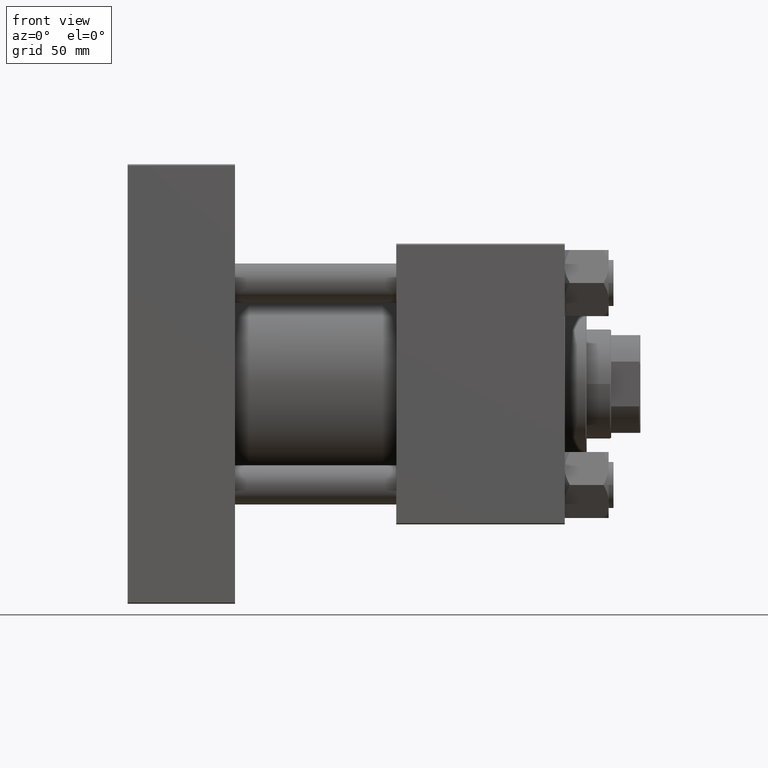
[diagram: clean part render]
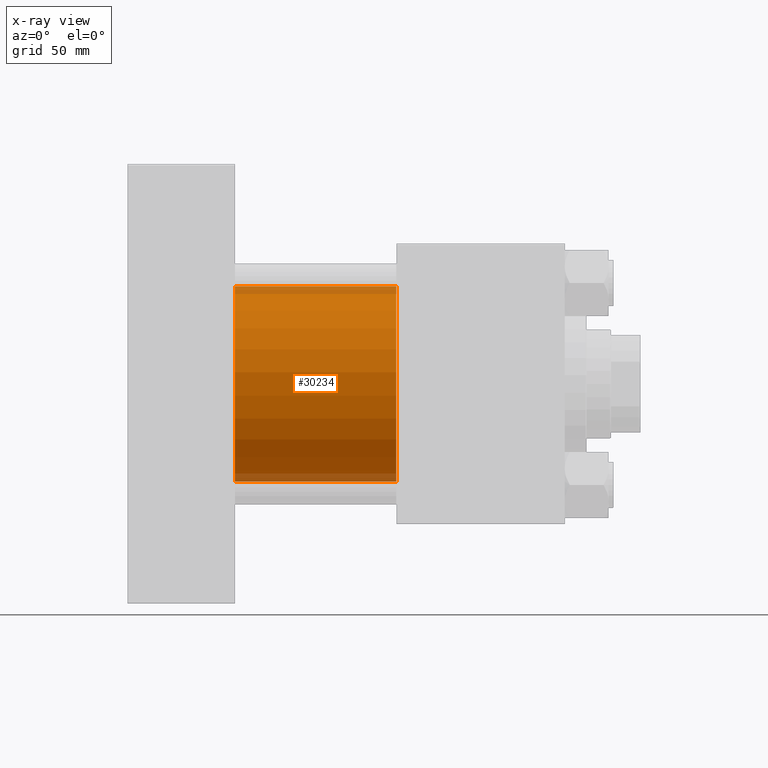
[diagram: x-ray — body ghosted, one internal face saturated and labeled with its STEP entity id]
A machine part, front view, then the same camera in x-ray: the body is ghosted and one INTERNAL B-rep face — a face not visible from any outside direction — is saturated and labeled: STEP entity #30234.
In plain terms, the highlighted cylindrical surface (partial cylindrical patch) has radius 40 mm, axis along (-1, -0, -0).
Its self-contained STEP definition (entity closure, byte-faithful):
#740 = VERTEX_POINT ( 'NONE', #43229 ) ;
#1503 = LINE ( 'NONE', #16564, #19551 ) ;
#1729 = DIRECTION ( 'NONE',  ( 0.000000000000000000, 0.000000000000000000, 1.000000000000000000 ) ) ;
#6353 = DIRECTION ( 'NONE',  ( 1.000000000000000000, 0.000000000000000000, 0.000000000000000000 ) ) ;
#6682 = CARTESIAN_POINT ( 'NONE',  ( 110.0000000000000000, -2.602085213965210642E-15, 0.000000000000000000 ) ) ;
#6933 = DIRECTION ( 'NONE',  ( 0.000000000000000000, 0.000000000000000000, -1.000000000000000000 ) ) ;
#9125 = EDGE_CURVE ( 'NONE', #20304, #36164, #36418, .T. ) ;
#9720 = AXIS2_PLACEMENT_3D ( 'NONE', #22358, #44799, #1729 ) ;
#16564 = CARTESIAN_POINT ( 'NONE',  ( 110.0000000000000000, 2.296501982624201990E-15, -40.00000000000000000 ) ) ;
#17087 = ORIENTED_EDGE ( 'NONE', *, *, #9125, .F. ) ;
#17278 = DIRECTION ( 'NONE',  ( -1.000000000000000000, -0.000000000000000000, -0.000000000000000000 ) ) ;
#18329 = CARTESIAN_POINT ( 'NONE',  ( 44.00000000000000000, -2.602085213965210642E-15, 0.000000000000000000 ) ) ;
#19334 = VECTOR ( 'NONE', #17278, 1000.000000000000000 ) ;
#19551 = VECTOR ( 'NONE', #32613, 1000.000000000000000 ) ;
#20304 = VERTEX_POINT ( 'NONE', #31316 ) ;
#20926 = CARTESIAN_POINT ( 'NONE',  ( 110.0000000000000000, 2.296501982624201990E-15, -40.00000000000000000 ) ) ;
#21088 = EDGE_CURVE ( 'NONE', #43838, #740, #1503, .T. ) ;
#21334 = FACE_OUTER_BOUND ( 'NONE', #45682, .T. ) ;
#22358 = CARTESIAN_POINT ( 'NONE',  ( 110.0000000000000000, -2.602085213965210642E-15, 0.000000000000000000 ) ) ;
#24342 = ORIENTED_EDGE ( 'NONE', *, *, #21088, .T. ) ;
#24759 = EDGE_CURVE ( 'NONE', #36164, #740, #35747, .T. ) ;
#29317 = DIRECTION ( 'NONE',  ( 0.000000000000000000, 0.000000000000000000, -1.000000000000000000 ) ) ;
#30234 = ADVANCED_FACE ( 'NONE', ( #21334 ), #36900, .F. ) ;
#31316 = CARTESIAN_POINT ( 'NONE',  ( 110.0000000000000000, -2.602085213965210642E-15, 40.00000000000000000 ) ) ;
#32172 = AXIS2_PLACEMENT_3D ( 'NONE', #6682, #33977, #6933 ) ;
#32176 = ORIENTED_EDGE ( 'NONE', *, *, #46592, .T. ) ;
#32505 = AXIS2_PLACEMENT_3D ( 'NONE', #18329, #6353, #29317 ) ;
#32613 = DIRECTION ( 'NONE',  ( -1.000000000000000000, -0.000000000000000000, -0.000000000000000000 ) ) ;
#33977 = DIRECTION ( 'NONE',  ( 1.000000000000000000, 0.000000000000000000, 0.000000000000000000 ) ) ;
#35747 = CIRCLE ( 'NONE', #32505, 40.00000000000000000 ) ;
#36164 = VERTEX_POINT ( 'NONE', #41145 ) ;
#36418 = LINE ( 'NONE', #40013, #19334 ) ;
#36900 = CYLINDRICAL_SURFACE ( 'NONE', #9720, 40.00000000000000000 ) ;
#38685 = CIRCLE ( 'NONE', #32172, 40.00000000000000000 ) ;
#40013 = CARTESIAN_POINT ( 'NONE',  ( 110.0000000000000000, -2.602085213965210642E-15, 40.00000000000000000 ) ) ;
#41145 = CARTESIAN_POINT ( 'NONE',  ( 44.00000000000000000, -2.602085213965210642E-15, 40.00000000000000000 ) ) ;
#43229 = CARTESIAN_POINT ( 'NONE',  ( 44.00000000000000000, 2.296501982624201990E-15, -40.00000000000000000 ) ) ;
#43838 = VERTEX_POINT ( 'NONE', #20926 ) ;
#44143 = ORIENTED_EDGE ( 'NONE', *, *, #24759, .F. ) ;
#44799 = DIRECTION ( 'NONE',  ( -1.000000000000000000, -0.000000000000000000, -0.000000000000000000 ) ) ;
#45682 = EDGE_LOOP ( 'NONE', ( #32176, #24342, #44143, #17087 ) ) ;
#46592 = EDGE_CURVE ( 'NONE', #20304, #43838, #38685, .T. ) ;